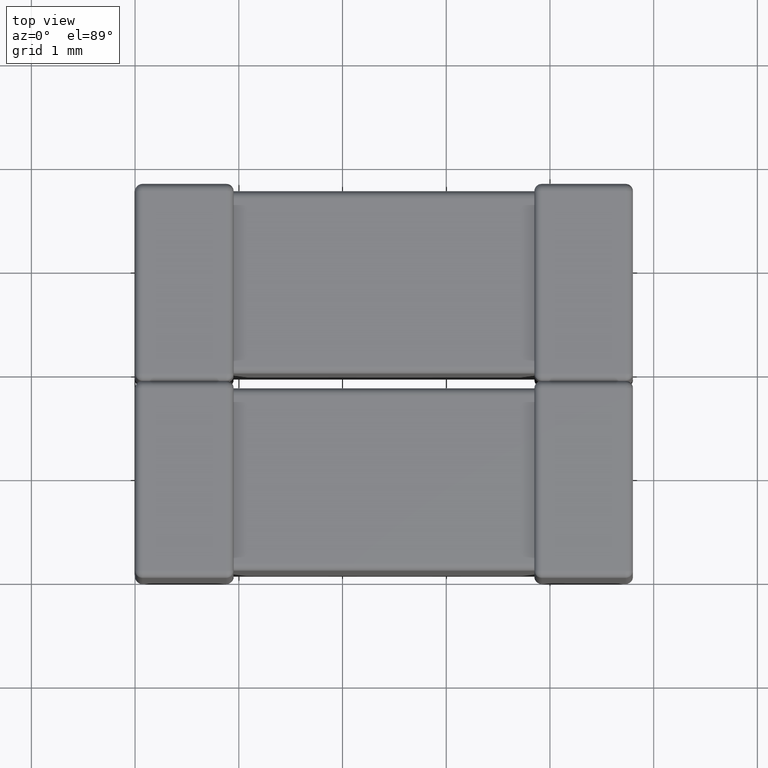
[diagram: clean part render]
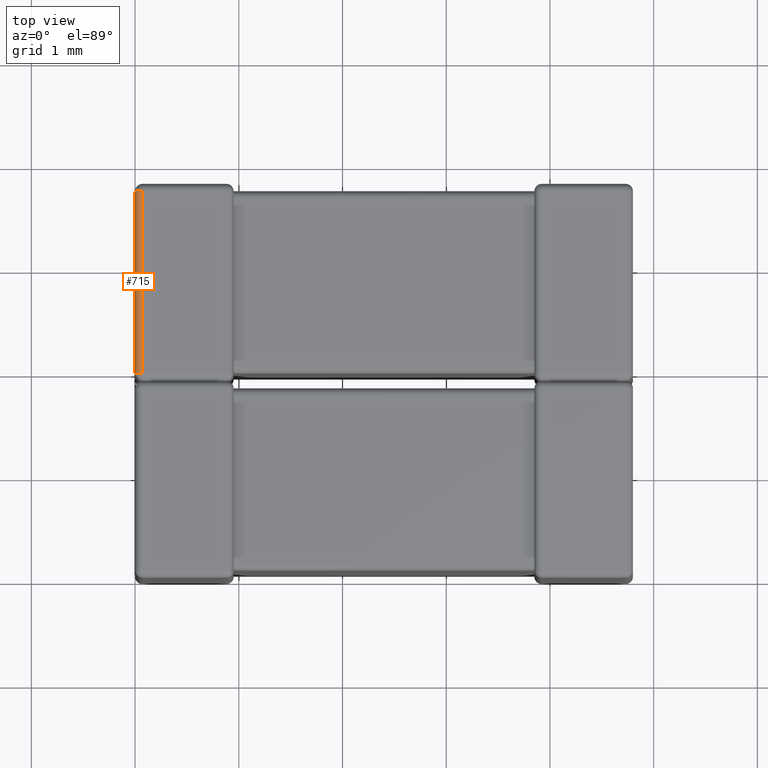
[diagram: same view with one face highlighted and labeled with its STEP entity id]
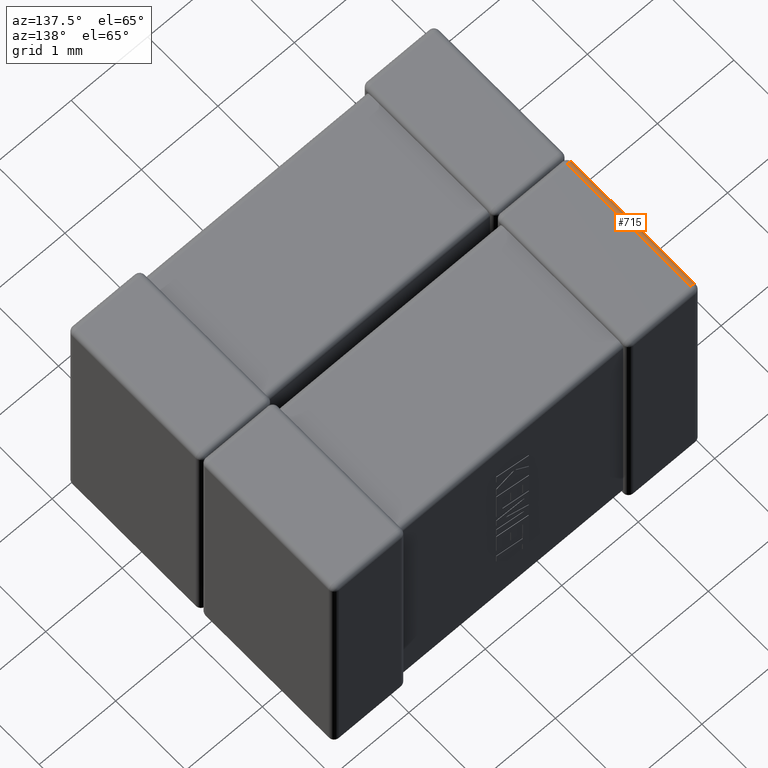
[diagram: same view with one face highlighted and labeled with its STEP entity id]
A machine part, top view. The second image highlights one B-rep face of the part: STEP entity #715.
A second angle (auxiliary view) of the same face is appended — the face is thin or edge-on in the first view.
In plain terms, the highlighted cylindrical surface (edge-blend (fillet) strip) has radius 0.07 mm, axis along (0, -1, 0).
Its self-contained STEP definition (entity closure, byte-faithful):
#7 = CARTESIAN_POINT ( 'NONE',  ( 0.000000000000000000, 1.969999999999999973, -0.07000000000000000666 ) ) ;
#45 = VERTEX_POINT ( 'NONE', #5946 ) ;
#271 = CARTESIAN_POINT ( 'NONE',  ( 0.06999999999999975686, 3.729999999999999982, -0.07000000000000000666 ) ) ;
#593 = DIRECTION ( 'NONE',  ( 0.000000000000000000, 0.000000000000000000, 1.000000000000000000 ) ) ;
#677 = EDGE_CURVE ( 'NONE', #4476, #5351, #6329, .T. ) ;
#713 = CARTESIAN_POINT ( 'NONE',  ( 0.06999999999999975686, 1.969999999999999973, 0.000000000000000000 ) ) ;
#715 = ADVANCED_FACE ( 'NONE', ( #2356 ), #5200, .T. ) ;
#922 = DIRECTION ( 'NONE',  ( -0.000000000000000000, -1.000000000000000000, -0.000000000000000000 ) ) ;
#1169 = CARTESIAN_POINT ( 'NONE',  ( 0.06999999999999975686, 3.799999999999999822, -0.07000000000000000666 ) ) ;
#1629 = VECTOR ( 'NONE', #922, 1000.000000000000000 ) ;
#2047 = DIRECTION ( 'NONE',  ( 0.000000000000000000, 0.000000000000000000, -1.000000000000000000 ) ) ;
#2088 = AXIS2_PLACEMENT_3D ( 'NONE', #271, #2527, #2047 ) ;
#2121 = ORIENTED_EDGE ( 'NONE', *, *, #5966, .T. ) ;
#2296 = DIRECTION ( 'NONE',  ( 0.000000000000000000, -1.000000000000000000, 0.000000000000000000 ) ) ;
#2356 = FACE_OUTER_BOUND ( 'NONE', #4537, .T. ) ;
#2527 = DIRECTION ( 'NONE',  ( -0.000000000000000000, -1.000000000000000000, -0.000000000000000000 ) ) ;
#2947 = DIRECTION ( 'NONE',  ( 0.000000000000000000, 1.000000000000000000, 0.000000000000000000 ) ) ;
#3214 = ORIENTED_EDGE ( 'NONE', *, *, #677, .T. ) ;
#3561 = ORIENTED_EDGE ( 'NONE', *, *, #5859, .T. ) ;
#3684 = VECTOR ( 'NONE', #2947, 1000.000000000000000 ) ;
#3773 = CARTESIAN_POINT ( 'NONE',  ( 0.06999999999999975686, 3.729999999999999982, 0.000000000000000000 ) ) ;
#3823 = LINE ( 'NONE', #6085, #1629 ) ;
#4420 = DIRECTION ( 'NONE',  ( -3.484935554417692655E-15, 0.000000000000000000, 1.000000000000000000 ) ) ;
#4475 = AXIS2_PLACEMENT_3D ( 'NONE', #7219, #2296, #4420 ) ;
#4476 = VERTEX_POINT ( 'NONE', #713 ) ;
#4537 = EDGE_LOOP ( 'NONE', ( #5455, #3214, #2121, #3561 ) ) ;
#4714 = CIRCLE ( 'NONE', #2088, 0.07000000000000000666 ) ;
#5200 = CYLINDRICAL_SURFACE ( 'NONE', #6770, 0.07000000000000000666 ) ;
#5267 = CARTESIAN_POINT ( 'NONE',  ( 0.06999999999999975686, 3.799999999999999822, 0.000000000000000000 ) ) ;
#5351 = VERTEX_POINT ( 'NONE', #3773 ) ;
#5455 = ORIENTED_EDGE ( 'NONE', *, *, #7258, .F. ) ;
#5690 = DIRECTION ( 'NONE',  ( 0.000000000000000000, -1.000000000000000000, 0.000000000000000000 ) ) ;
#5859 = EDGE_CURVE ( 'NONE', #45, #6105, #3823, .T. ) ;
#5946 = CARTESIAN_POINT ( 'NONE',  ( 0.000000000000000000, 3.729999999999999982, -0.07000000000000000666 ) ) ;
#5966 = EDGE_CURVE ( 'NONE', #5351, #45, #4714, .T. ) ;
#6085 = CARTESIAN_POINT ( 'NONE',  ( 0.000000000000000000, 1.899999999999999911, -0.07000000000000000666 ) ) ;
#6105 = VERTEX_POINT ( 'NONE', #7 ) ;
#6329 = LINE ( 'NONE', #5267, #3684 ) ;
#6770 = AXIS2_PLACEMENT_3D ( 'NONE', #1169, #5690, #593 ) ;
#7219 = CARTESIAN_POINT ( 'NONE',  ( 0.07000000000000000666, 1.969999999999999973, -0.07000000000000000666 ) ) ;
#7258 = EDGE_CURVE ( 'NONE', #4476, #6105, #7298, .T. ) ;
#7298 = CIRCLE ( 'NONE', #4475, 0.07000000000000000666 ) ;